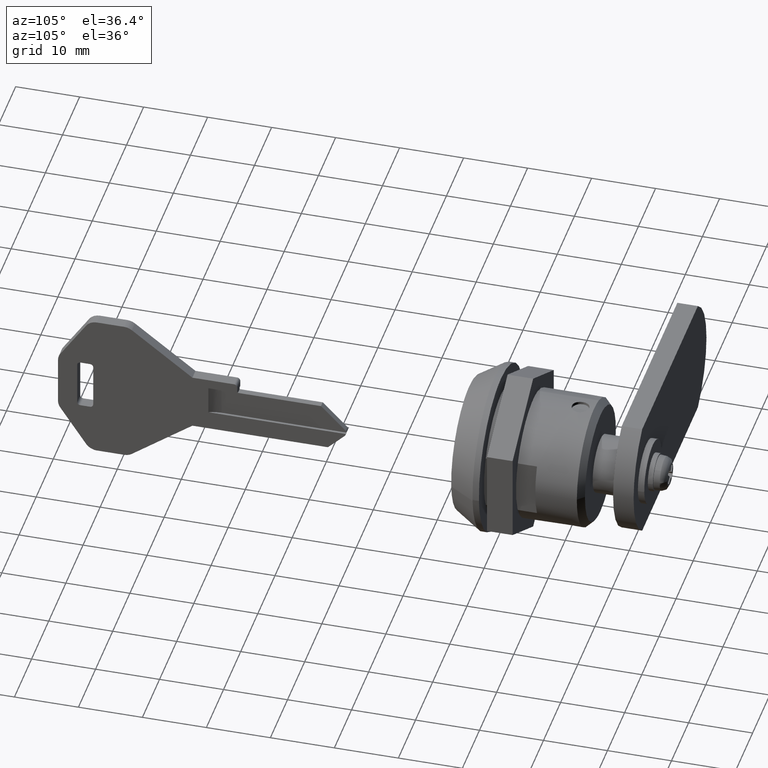
[diagram: clean part render]
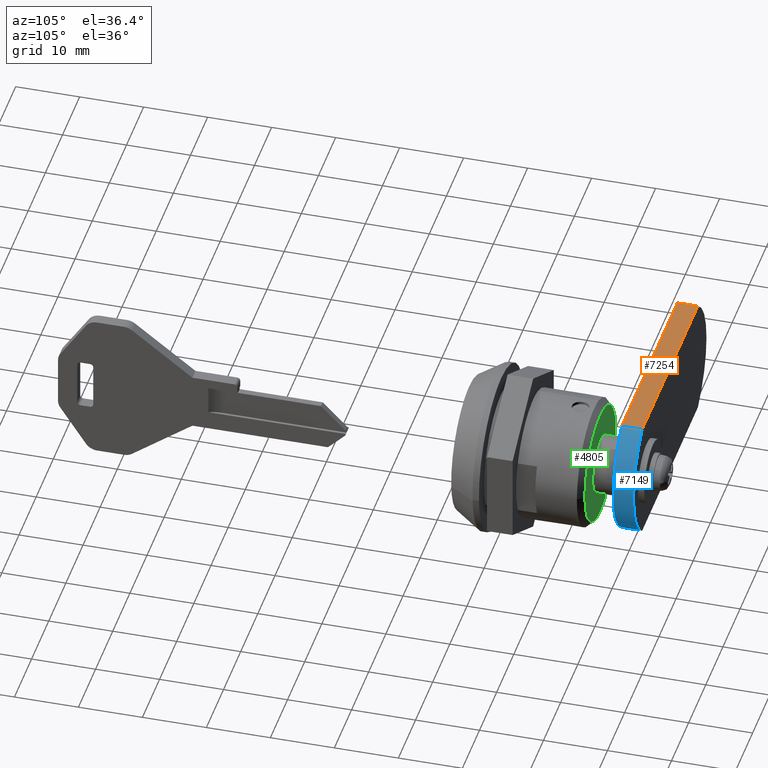
[diagram: same view with three faces highlighted in distinct colors, each labeled with its STEP entity id]
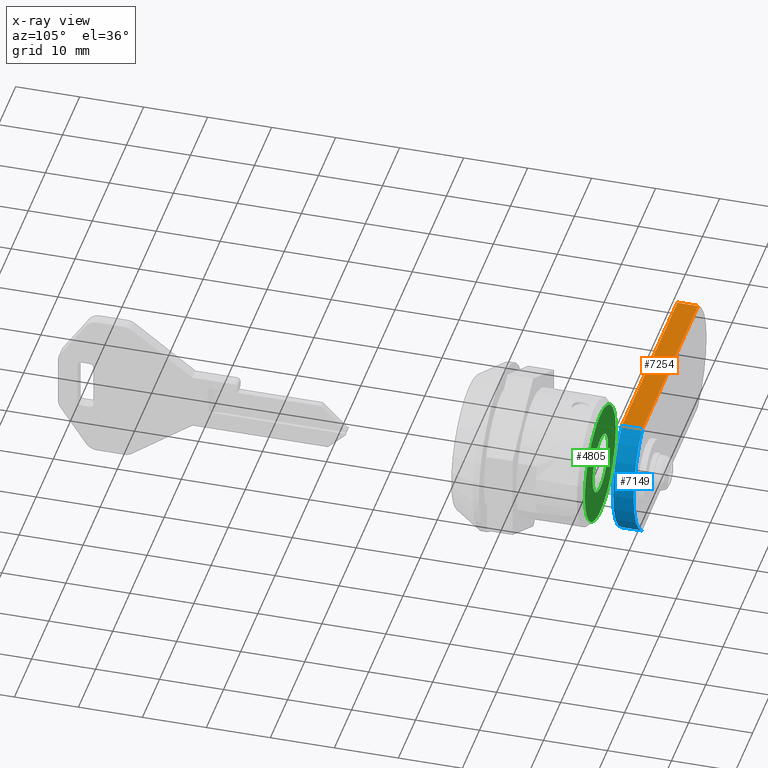
[diagram: x-ray of the same camera — body ghosted, the three highlighted faces saturated]
A machine part, auxiliary view with three faces highlighted in distinct colors.
The next image is the same camera in x-ray (body ghosted, the three faces saturated) — at least one of them is partly hidden behind the body in this view.
Their STEP definitions:

[orange] entity #7254 — the highlighted face is a freeform B-spline surface patch.
#7099=CARTESIAN_POINT('',(19.500009000000048,-2.480752425447045,9.499992000000001));
#7100=VERTEX_POINT('',#7099);
#7125=CARTESIAN_POINT('',(22.700021000000000,-2.480752425447045,9.499992000000001));
#7126=VERTEX_POINT('',#7125);
#7142=CARTESIAN_POINT('',(22.700021000000000,-2.480752425447045,9.499992000000001));
#7143=CARTESIAN_POINT('',(19.500009000000048,-2.480752425447045,9.499992000000001));
#7144=QUASI_UNIFORM_CURVE('',1,(#7142,#7143),.UNSPECIFIED.,.F.,.U.);
#7145=EDGE_CURVE('',#7126,#7100,#7144,.T.);
#7192=CARTESIAN_POINT('',(19.500009000000048,29.980752425447051,9.499992000000001));
#7193=VERTEX_POINT('',#7192);
#7209=CARTESIAN_POINT('',(22.700021000000000,29.980752425447051,9.499992000000001));
#7210=VERTEX_POINT('',#7209);
#7211=CARTESIAN_POINT('',(22.700021000000000,29.980752425447051,9.499992000000001));
#7212=CARTESIAN_POINT('',(19.500009000000048,29.980752425447051,9.499992000000001));
#7213=QUASI_UNIFORM_CURVE('',1,(#7211,#7212),.UNSPECIFIED.,.F.,.U.);
#7214=EDGE_CURVE('',#7210,#7193,#7213,.T.);
#7235=CARTESIAN_POINT('',(19.340168913213841,31.602205139283281,9.499992000000001));
#7236=CARTESIAN_POINT('',(19.340168913213841,-4.102205429511742,9.499992000000001));
#7237=CARTESIAN_POINT('',(22.859862374251371,31.602205139283281,9.499992000000001));
#7238=CARTESIAN_POINT('',(22.859862374251371,-4.102205429511742,9.499992000000001));
#7239=B_SPLINE_SURFACE_WITH_KNOTS('',1,1,((#7235,#7237),(#7236,#7238)),.UNSPECIFIED.,.F.,.F.,.U.,(2,2),(2,2),(0.0,35.704410568795019),(0.0,3.519693461037530),.UNSPECIFIED.);
#7240=CARTESIAN_POINT('',(19.500009000000048,-2.480752425447045,9.499992000000001));
#7241=CARTESIAN_POINT('',(19.500009000000048,29.980752425447051,9.499992000000001));
#7242=QUASI_UNIFORM_CURVE('',1,(#7240,#7241),.UNSPECIFIED.,.F.,.U.);
#7243=EDGE_CURVE('',#7100,#7193,#7242,.T.);
#7244=ORIENTED_EDGE('',*,*,#7243,.F.);
#7245=ORIENTED_EDGE('',*,*,#7145,.F.);
#7246=CARTESIAN_POINT('',(22.700021000000000,-2.480752425447045,9.499992000000001));
#7247=CARTESIAN_POINT('',(22.700021000000000,29.980752425447051,9.499992000000001));
#7248=QUASI_UNIFORM_CURVE('',1,(#7246,#7247),.UNSPECIFIED.,.F.,.U.);
#7249=EDGE_CURVE('',#7126,#7210,#7248,.T.);
#7250=ORIENTED_EDGE('',*,*,#7249,.T.);
#7251=ORIENTED_EDGE('',*,*,#7214,.T.);
#7252=EDGE_LOOP('',(#7244,#7245,#7250,#7251));
#7253=FACE_OUTER_BOUND('',#7252,.T.);
#7254=ADVANCED_FACE('',(#7253),#7239,.T.);

[blue] entity #7149 — the highlighted face is a freeform B-spline surface patch.
#7085=CARTESIAN_POINT('',(22.780021300000001,-2.229850833941982,9.666382911246188));
#7086=CARTESIAN_POINT('',(19.418008692500049,-2.229850833941982,9.666382911246188));
#7087=CARTESIAN_POINT('',(22.780021300000008,-17.699297177741606,-0.303462489086348));
#7088=CARTESIAN_POINT('',(19.418008692500042,-17.699297177741606,-0.303462489086348));
#7089=CARTESIAN_POINT('',(22.780021300000001,-1.957100555476046,-9.836816200984284));
#7090=CARTESIAN_POINT('',(19.418008692500049,-1.957100555476046,-9.836816200984284));
#7098=(BOUNDED_SURFACE()B_SPLINE_SURFACE(1,2,((#7085,#7087,#7089),(#7086,#7088,#7090)),.UNSPECIFIED.,.F.,.F.,.U.)B_SPLINE_SURFACE_WITH_KNOTS((2,2),(3,3),(0.0,3.362012607499956),(0.0,25.498216366827361),.UNSPECIFIED.)GEOMETRIC_REPRESENTATION_ITEM()RATIONAL_B_SPLINE_SURFACE(((1.0,0.529919264233205,1.0),(1.0,0.529919264233205,1.0)))REPRESENTATION_ITEM('')SURFACE());
#7099=CARTESIAN_POINT('',(19.500009000000048,-2.480752425447045,9.499992000000001));
#7100=VERTEX_POINT('',#7099);
#7101=CARTESIAN_POINT('',(19.500009000000048,-2.480740698407570,-9.500000000000199));
#7102=VERTEX_POINT('',#7101);
#7103=CARTESIAN_POINT('',(19.500009000000048,-2.480752425447045,9.499992000000001));
#7104=CARTESIAN_POINT('',(19.500009000000045,-7.500003750146698,6.075933832742968));
#7105=CARTESIAN_POINT('',(19.500009000000048,-7.499999999997809,-0.000007097947909));
#7106=CARTESIAN_POINT('',(19.500009000000045,-7.499996249848919,-6.075948028638786));
#7107=CARTESIAN_POINT('',(19.500009000000048,-2.480740698407570,-9.500000000000197));
#7115=(BOUNDED_CURVE()B_SPLINE_CURVE(2,(#7103,#7104,#7105,#7106,#7107),.UNSPECIFIED.,.F.,.U.)B_SPLINE_CURVE_WITH_KNOTS((3,2,3),(0.0,0.500000000000000,1.0),.UNSPECIFIED.)CURVE()GEOMETRIC_REPRESENTATION_ITEM()RATIONAL_B_SPLINE_CURVE((1.0,0.884178482914545,1.0,0.884178482914545,1.0))REPRESENTATION_ITEM(''));
#7116=EDGE_CURVE('',#7100,#7102,#7115,.T.);
#7117=ORIENTED_EDGE('',*,*,#7116,.T.);
#7118=CARTESIAN_POINT('',(22.700021000000000,-2.480740698407570,-9.500000000000199));
#7119=VERTEX_POINT('',#7118);
#7120=CARTESIAN_POINT('',(22.700021000000000,-2.480740698407570,-9.500000000000199));
#7121=CARTESIAN_POINT('',(19.500009000000048,-2.480740698407570,-9.500000000000199));
#7122=QUASI_UNIFORM_CURVE('',1,(#7120,#7121),.UNSPECIFIED.,.F.,.U.);
#7123=EDGE_CURVE('',#7119,#7102,#7122,.T.);
#7124=ORIENTED_EDGE('',*,*,#7123,.F.);
#7125=CARTESIAN_POINT('',(22.700021000000000,-2.480752425447045,9.499992000000001));
#7126=VERTEX_POINT('',#7125);
#7127=CARTESIAN_POINT('',(22.700021000000000,-2.480752425447045,9.499992000000001));
#7128=CARTESIAN_POINT('',(22.700021000000003,-7.500003750146698,6.075933832742968));
#7129=CARTESIAN_POINT('',(22.700021000000000,-7.499999999997809,-0.000007097947909));
#7130=CARTESIAN_POINT('',(22.700021000000003,-7.499996249848919,-6.075948028638786));
#7131=CARTESIAN_POINT('',(22.700021000000000,-2.480740698407570,-9.500000000000197));
#7139=(BOUNDED_CURVE()B_SPLINE_CURVE(2,(#7127,#7128,#7129,#7130,#7131),.UNSPECIFIED.,.F.,.U.)B_SPLINE_CURVE_WITH_KNOTS((3,2,3),(0.0,0.500000000000000,1.0),.UNSPECIFIED.)CURVE()GEOMETRIC_REPRESENTATION_ITEM()RATIONAL_B_SPLINE_CURVE((1.0,0.884178482914545,1.0,0.884178482914545,1.0))REPRESENTATION_ITEM(''));
#7140=EDGE_CURVE('',#7126,#7119,#7139,.T.);
#7141=ORIENTED_EDGE('',*,*,#7140,.F.);
#7142=CARTESIAN_POINT('',(22.700021000000000,-2.480752425447045,9.499992000000001));
#7143=CARTESIAN_POINT('',(19.500009000000048,-2.480752425447045,9.499992000000001));
#7144=QUASI_UNIFORM_CURVE('',1,(#7142,#7143),.UNSPECIFIED.,.F.,.U.);
#7145=EDGE_CURVE('',#7126,#7100,#7144,.T.);
#7146=ORIENTED_EDGE('',*,*,#7145,.T.);
#7147=EDGE_LOOP('',(#7117,#7124,#7141,#7146));
#7148=FACE_OUTER_BOUND('',#7147,.T.);
#7149=ADVANCED_FACE('',(#7148),#7098,.T.);

[green] entity #4805 — the highlighted face is a freeform B-spline surface patch.
#3337=CARTESIAN_POINT('',(15.499999999951021,8.980434682760613,-0.593121327851173));
#3338=VERTEX_POINT('',#3337);
#3344=CARTESIAN_POINT('',(15.500000000000000,0.0,-9.0));
#3345=VERTEX_POINT('',#3344);
#3346=CARTESIAN_POINT('',(15.500000000000000,0.0,-9.0));
#3347=CARTESIAN_POINT('',(15.499999999999996,8.425194405333535,-9.0));
#3348=CARTESIAN_POINT('',(15.499999999951022,8.980434682760613,-0.593121327851173));
#3356=(BOUNDED_CURVE()B_SPLINE_CURVE(2,(#3346,#3347,#3348),.UNSPECIFIED.,.F.,.U.)B_SPLINE_CURVE_WITH_KNOTS((3,3),(0.0,0.238494527059047),.UNSPECIFIED.)CURVE()GEOMETRIC_REPRESENTATION_ITEM()RATIONAL_B_SPLINE_CURVE((1.0,0.720586281201135,0.974281704152228))REPRESENTATION_ITEM(''));
#3357=EDGE_CURVE('',#3345,#3338,#3356,.T.);
#3359=CARTESIAN_POINT('',(15.499999999968001,-8.999657307607491,0.078538819719838));
#3360=VERTEX_POINT('',#3359);
#3361=CARTESIAN_POINT('',(15.499999999968010,-8.999657307607491,0.078538819719838));
#3362=CARTESIAN_POINT('',(15.499999999999996,-8.999999999999998,0.039270157620521));
#3363=CARTESIAN_POINT('',(15.500000000000000,-9.0,0.0));
#3364=CARTESIAN_POINT('',(15.500000000000005,-9.0,-9.0));
#3365=CARTESIAN_POINT('',(15.500000000000000,0.0,-9.0));
#3373=(BOUNDED_CURVE()B_SPLINE_CURVE(2,(#3361,#3362,#3363,#3364,#3365),.UNSPECIFIED.,.F.,.U.)B_SPLINE_CURVE_WITH_KNOTS((3,2,3),(0.748460105655846,0.750000000000000,1.0),.UNSPECIFIED.)CURVE()GEOMETRIC_REPRESENTATION_ITEM()RATIONAL_B_SPLINE_CURVE((0.996414028079190,0.998195901555632,1.0,0.707106781186547,1.0))REPRESENTATION_ITEM(''));
#3374=EDGE_CURVE('',#3360,#3345,#3373,.T.);
#3484=CARTESIAN_POINT('',(15.500000000000000,0.0,9.0));
#3485=VERTEX_POINT('',#3484);
#3486=CARTESIAN_POINT('',(15.500000000000000,0.0,9.0));
#3487=CARTESIAN_POINT('',(15.499999999999996,-8.921800894890451,9.0));
#3488=CARTESIAN_POINT('',(15.499999999968010,-8.999657307607491,0.078538819719838));
#3496=(BOUNDED_CURVE()B_SPLINE_CURVE(2,(#3486,#3487,#3488),.UNSPECIFIED.,.F.,.U.)B_SPLINE_CURVE_WITH_KNOTS((3,3),(0.500000000000000,0.748460105655846),.UNSPECIFIED.)CURVE()GEOMETRIC_REPRESENTATION_ITEM()RATIONAL_B_SPLINE_CURVE((1.0,0.708910879630916,0.996414028079190))REPRESENTATION_ITEM(''));
#3497=EDGE_CURVE('',#3485,#3360,#3496,.T.);
#3499=CARTESIAN_POINT('',(15.499999999951019,8.980434682760613,-0.593121327851173));
#3500=CARTESIAN_POINT('',(15.499999999999995,9.000000000000002,-0.296883365066775));
#3501=CARTESIAN_POINT('',(15.500000000000000,9.0,0.0));
#3502=CARTESIAN_POINT('',(15.500000000000005,9.0,9.0));
#3503=CARTESIAN_POINT('',(15.500000000000000,0.0,9.0));
#3511=(BOUNDED_CURVE()B_SPLINE_CURVE(2,(#3499,#3500,#3501,#3502,#3503),.UNSPECIFIED.,.F.,.U.)B_SPLINE_CURVE_WITH_KNOTS((3,2,3),(0.238494527059047,0.250000000000000,0.500000000000000),.UNSPECIFIED.)CURVE()GEOMETRIC_REPRESENTATION_ITEM()RATIONAL_B_SPLINE_CURVE((0.974281704152228,0.986520499985413,1.0,0.707106781186547,1.0))REPRESENTATION_ITEM(''));
#3512=EDGE_CURVE('',#3338,#3485,#3511,.T.);
#4089=CARTESIAN_POINT('',(15.499999999999400,-1.0,-4.387482193696060));
#4090=VERTEX_POINT('',#4089);
#4230=CARTESIAN_POINT('',(15.499999999999400,1.0,-4.387482193696060));
#4231=VERTEX_POINT('',#4230);
#4694=CARTESIAN_POINT('',(15.499999999999400,-1.0,-4.387482193696060));
#4695=CARTESIAN_POINT('',(15.500000000000002,-4.921498295284748,-3.493689781063786));
#4696=CARTESIAN_POINT('',(15.500000000000000,-4.471782076064993,0.503155109468107));
#4697=CARTESIAN_POINT('',(15.500000000000002,-4.022065856845237,4.500000000000000));
#4698=CARTESIAN_POINT('',(15.500000000000000,0.0,4.500000000000000));
#4699=CARTESIAN_POINT('',(15.500000000000002,4.022065856845234,4.500000000000000));
#4700=CARTESIAN_POINT('',(15.500000000000000,4.471782076064992,0.503155109468110));
#4701=CARTESIAN_POINT('',(15.500000000000002,4.921498295284750,-3.493689781063783));
#4702=CARTESIAN_POINT('',(15.499999999999400,1.0,-4.387482193696060));
#4710=(BOUNDED_CURVE()B_SPLINE_CURVE(2,(#4694,#4695,#4696,#4697,#4698,#4699,#4700,#4701,#4702),.UNSPECIFIED.,.F.,.U.)B_SPLINE_CURVE_WITH_KNOTS((3,2,2,2,3),(0.0,0.250000000000000,0.500000000000000,0.750000000000000,1.0),.UNSPECIFIED.)CURVE()GEOMETRIC_REPRESENTATION_ITEM()RATIONAL_B_SPLINE_CURVE((1.0,0.745591123387500,1.0,0.745591123387500,1.0,0.745591123387500,1.0,0.745591123387500,1.0))REPRESENTATION_ITEM(''));
#4711=EDGE_CURVE('',#4090,#4231,#4710,.T.);
#4778=CARTESIAN_POINT('',(15.500000000000000,9.898470169727458,9.899099965112507));
#4779=CARTESIAN_POINT('',(15.500000000000000,-9.898711729471339,9.899099965112507));
#4780=CARTESIAN_POINT('',(15.500000000000000,9.898470169727458,-9.899100447910129));
#4781=CARTESIAN_POINT('',(15.500000000000000,-9.898711729471339,-9.899100447910129));
#4782=B_SPLINE_SURFACE_WITH_KNOTS('',1,1,((#4778,#4780),(#4779,#4781)),.UNSPECIFIED.,.F.,.F.,.U.,(2,2),(2,2),(0.0,19.797181899198801),(0.0,19.798200413022631),.UNSPECIFIED.);
#4783=ORIENTED_EDGE('',*,*,#3357,.T.);
#4784=ORIENTED_EDGE('',*,*,#3512,.T.);
#4785=ORIENTED_EDGE('',*,*,#3497,.T.);
#4786=ORIENTED_EDGE('',*,*,#3374,.T.);
#4787=EDGE_LOOP('',(#4783,#4784,#4785,#4786));
#4788=FACE_OUTER_BOUND('',#4787,.T.);
#4789=CARTESIAN_POINT('',(15.499999999999400,1.000000000000001,-4.387482193696060));
#4790=CARTESIAN_POINT('',(15.499999999999401,4.336809E-016,-4.615403346615336));
#4791=CARTESIAN_POINT('',(15.499999999999400,-0.999999999999999,-4.387482193696060));
#4799=(BOUNDED_CURVE()B_SPLINE_CURVE(2,(#4789,#4790,#4791),.UNSPECIFIED.,.F.,.U.)CURVE()GEOMETRIC_REPRESENTATION_ITEM()QUASI_UNIFORM_CURVE()RATIONAL_B_SPLINE_CURVE((1.0,0.974996043043569,1.0))REPRESENTATION_ITEM(''));
#4800=EDGE_CURVE('',#4231,#4090,#4799,.T.);
#4801=ORIENTED_EDGE('',*,*,#4800,.T.);
#4802=ORIENTED_EDGE('',*,*,#4711,.T.);
#4803=EDGE_LOOP('',(#4801,#4802));
#4804=FACE_BOUND('',#4803,.T.);
#4805=ADVANCED_FACE('',(#4788,#4804),#4782,.T.);